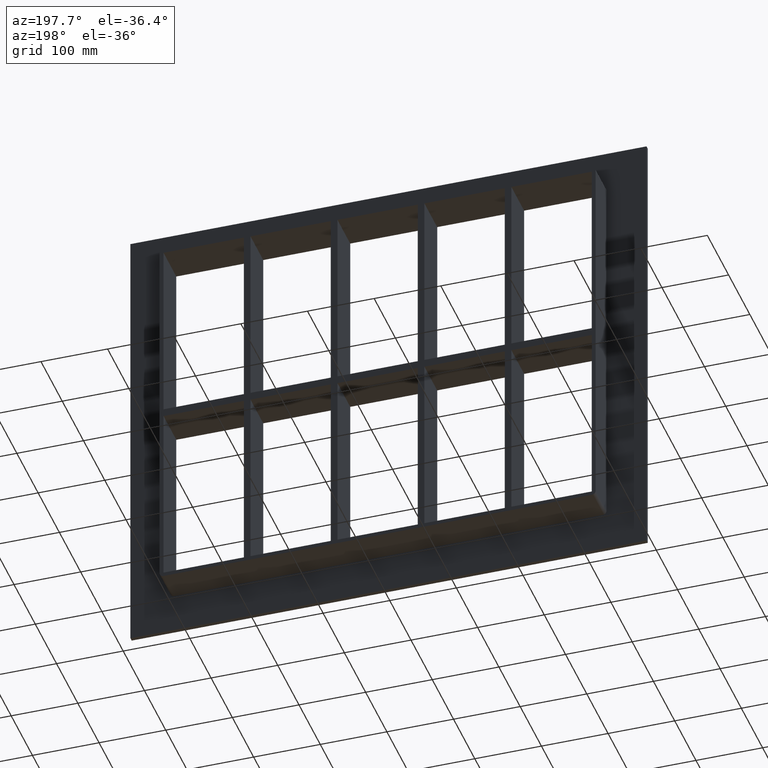
[diagram: clean part render]
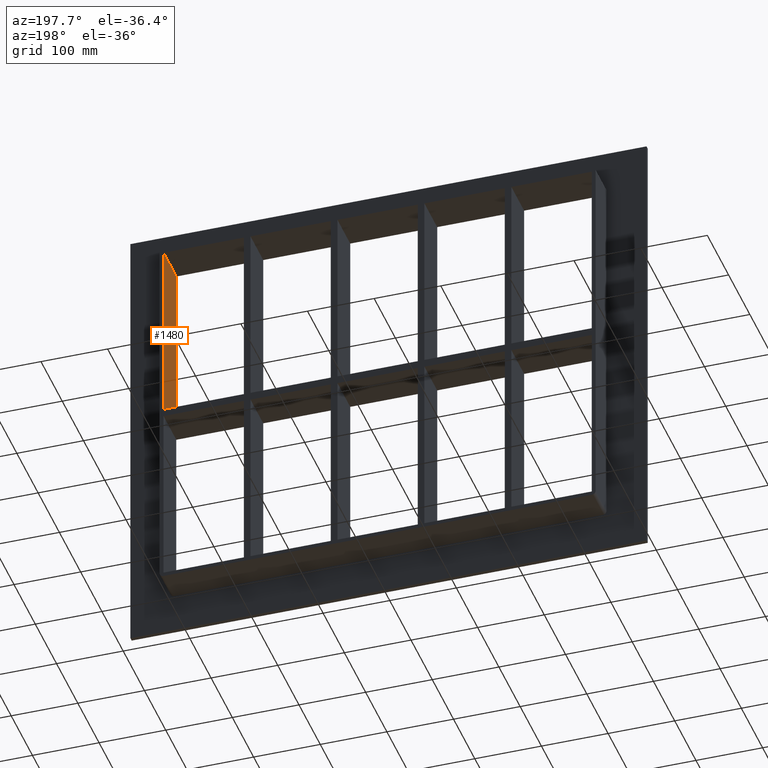
[diagram: same view with one face highlighted and labeled with its STEP entity id]
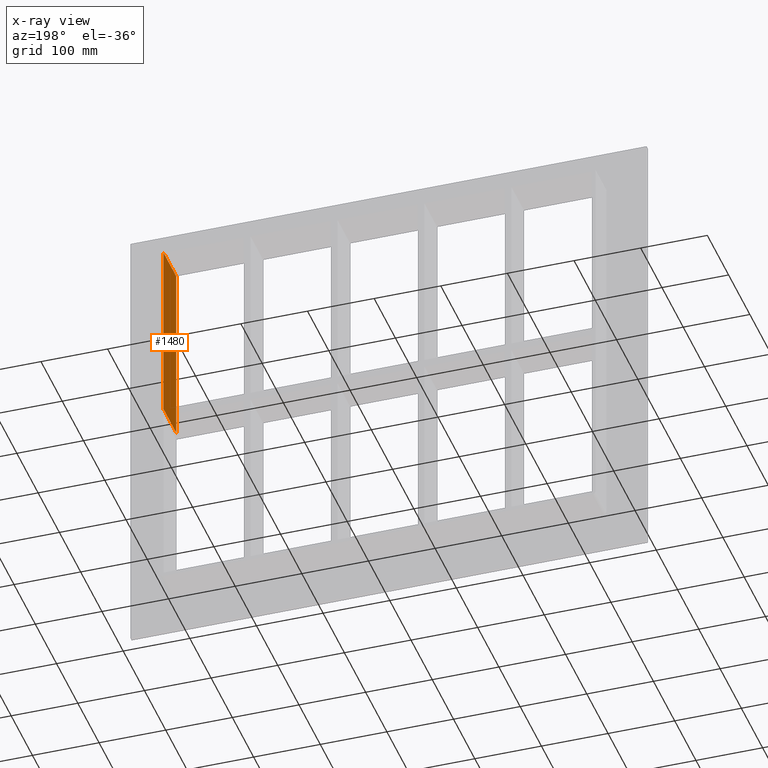
[diagram: x-ray of the same camera — body ghosted, the highlighted face saturated]
A machine part, auxiliary view. The second image highlights one B-rep face of the part: STEP entity #1480.
The next image is the same camera in x-ray: the body ghosted, the highlighted face saturated — about 0% of this face is hidden behind the body in this view.
In plain terms, the highlighted planar face has unit normal (1, 0, 0).
Its self-contained STEP definition (entity closure, byte-faithful):
#827=CARTESIAN_POINT('',(321.25000000000011,-3.0,284.00000000000006));
#828=VERTEX_POINT('',#827);
#835=CARTESIAN_POINT('',(321.24999999999994,-3.0,5.999999999999943));
#836=VERTEX_POINT('',#835);
#837=CARTESIAN_POINT('',(321.25000000000011,-3.0,284.00000000000006));
#838=DIRECTION('',(0.0,0.0,-1.0));
#839=VECTOR('',#838,278.00000000000011);
#840=LINE('',#837,#839);
#841=EDGE_CURVE('',#828,#836,#840,.T.);
#1089=CARTESIAN_POINT('',(321.25,57.0,5.999999999999943));
#1090=VERTEX_POINT('',#1089);
#1097=CARTESIAN_POINT('',(321.25000000000011,57.0,284.00000000000006));
#1098=VERTEX_POINT('',#1097);
#1099=CARTESIAN_POINT('',(321.25000000000011,57.0,5.999999999999943));
#1100=DIRECTION('',(0.0,0.0,1.0));
#1101=VECTOR('',#1100,278.00000000000011);
#1102=LINE('',#1099,#1101);
#1103=EDGE_CURVE('',#1090,#1098,#1102,.T.);
#1304=CARTESIAN_POINT('',(321.25000000000011,57.000000000000007,5.999999999999943));
#1305=DIRECTION('',(0.0,-1.0,0.0));
#1306=VECTOR('',#1305,60.000000000000007);
#1307=LINE('',#1304,#1306);
#1308=EDGE_CURVE('',#1090,#836,#1307,.T.);
#1350=CARTESIAN_POINT('',(321.25000000000011,-3.0,284.00000000000006));
#1351=DIRECTION('',(0.0,1.0,0.0));
#1352=VECTOR('',#1351,60.0);
#1353=LINE('',#1350,#1352);
#1354=EDGE_CURVE('',#828,#1098,#1353,.T.);
#1469=CARTESIAN_POINT('',(321.25000000000011,0.0,284.00000000000006));
#1470=DIRECTION('',(1.0,0.0,0.0));
#1471=DIRECTION('',(0.0,0.0,-1.0));
#1472=AXIS2_PLACEMENT_3D('',#1469,#1470,#1471);
#1473=PLANE('',#1472);
#1474=ORIENTED_EDGE('',*,*,#1308,.T.);
#1475=ORIENTED_EDGE('',*,*,#841,.F.);
#1476=ORIENTED_EDGE('',*,*,#1354,.T.);
#1477=ORIENTED_EDGE('',*,*,#1103,.F.);
#1478=EDGE_LOOP('',(#1474,#1475,#1476,#1477));
#1479=FACE_OUTER_BOUND('',#1478,.T.);
#1480=ADVANCED_FACE('',(#1479),#1473,.F.);